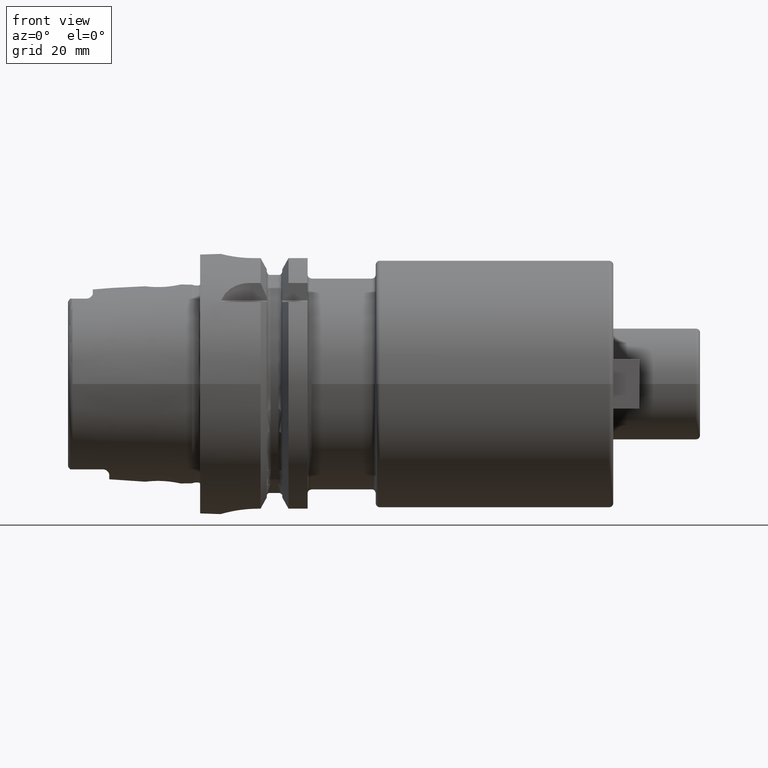
[diagram: clean part render]
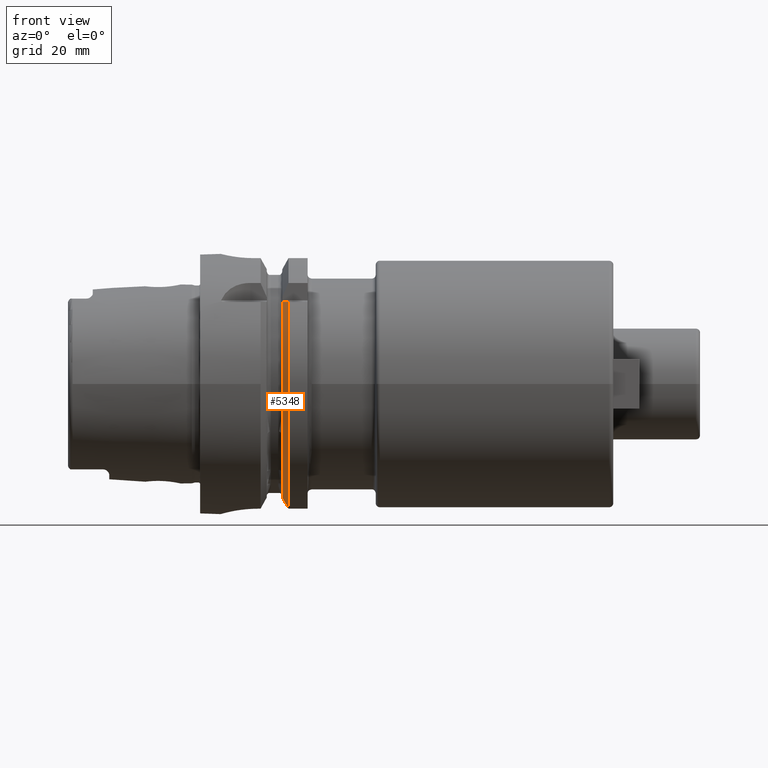
[diagram: same view with one face highlighted and labeled with its STEP entity id]
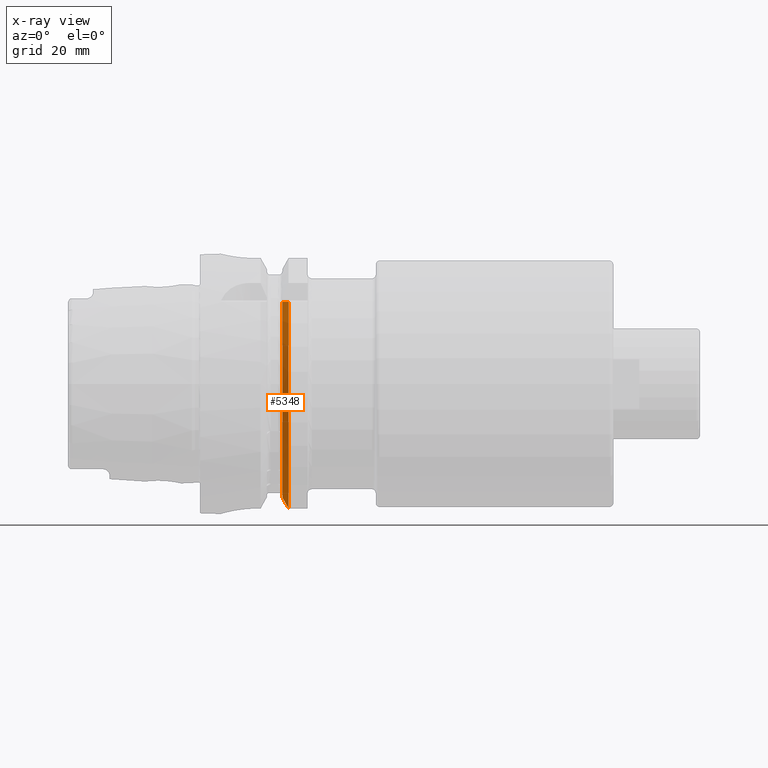
[diagram: x-ray of the same camera — body ghosted, the highlighted face saturated]
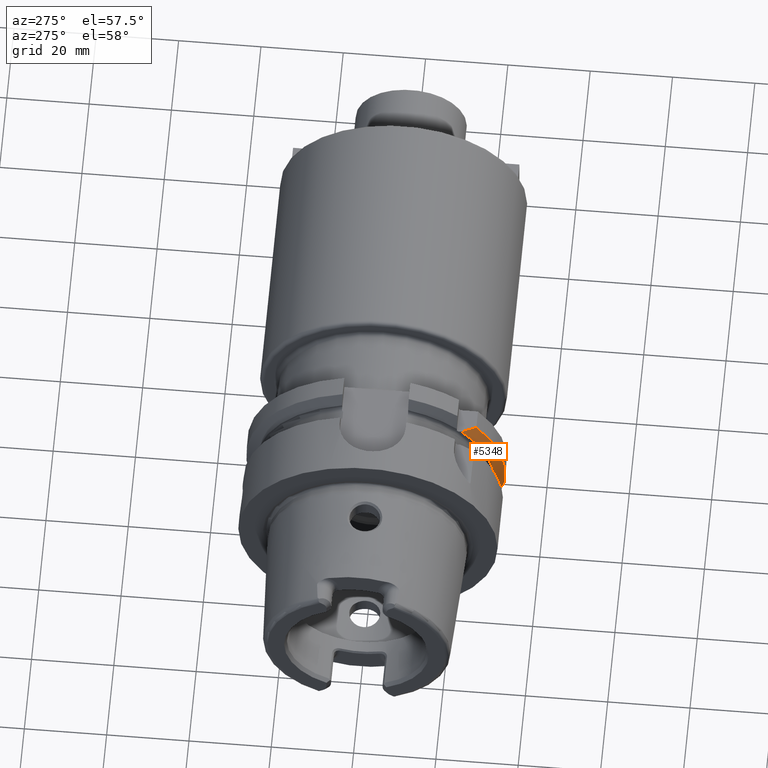
[diagram: same view with one face highlighted and labeled with its STEP entity id]
A machine part, front view. The second image highlights one B-rep face of the part: STEP entity #5348.
The next image is the same camera in x-ray: the body ghosted, the highlighted face saturated — about 0% of this face is hidden behind the body in this view.
A second angle (auxiliary view) of the same face is appended — the face is thin or edge-on in the first view.
In plain terms, the highlighted conical surface has half-angle 60 deg.
Its self-contained STEP definition (entity closure, byte-faithful):
#1781=CARTESIAN_POINT('',(1.9875E1,-2.100115501712E1,1.985E1));
#1782=CARTESIAN_POINT('',(2.002615778083E1,-2.136140971936E1,1.985E1));
#1783=CARTESIAN_POINT('',(2.033884699379E1,-2.209786160622E1,1.985E1));
#1784=CARTESIAN_POINT('',(2.083744118214E1,-2.324577082409E1,1.985E1));
#1785=CARTESIAN_POINT('',(2.119367380645E1,-2.404863363206E1,1.985E1));
#1786=CARTESIAN_POINT('',(2.137749907476E1,-2.445868966237E1,1.985E1));
#1788=CARTESIAN_POINT('',(2.137749907476E1,0.E0,0.E0));
#1789=DIRECTION('',(1.E0,0.E0,0.E0));
#1790=DIRECTION('',(0.E0,-7.764663384879E-1,6.301587301587E-1));
#1791=AXIS2_PLACEMENT_3D('',#1788,#1789,#1790);
#1793=CARTESIAN_POINT('',(1.9875E1,-9.0175E0,-2.745461174016E1));
#1794=CARTESIAN_POINT('',(2.003399901875E1,-9.0175E0,-2.774448053791E1));
#1795=CARTESIAN_POINT('',(2.035729051151E1,-9.0175E0,-2.833297398512E1));
#1796=CARTESIAN_POINT('',(2.085789481016E1,-9.0175E0,-2.924158789478E1));
#1797=CARTESIAN_POINT('',(2.120250873981E1,-9.0175E0,-2.986536377611E1));
#1798=CARTESIAN_POINT('',(2.137749907476E1,-9.0175E0,-3.018169467989E1));
#1800=CARTESIAN_POINT('',(1.9875E1,0.E0,0.E0));
#1801=DIRECTION('',(-1.E0,0.E0,0.E0));
#1802=DIRECTION('',(0.E0,-3.120501867909E-1,-9.500656192726E-1));
#1803=AXIS2_PLACEMENT_3D('',#1800,#1801,#1802);
#3236=CARTESIAN_POINT('',(1.9875E1,-9.0175E0,-2.745461174016E1));
#3238=VERTEX_POINT('',#3236);
#3241=VERTEX_POINT('',#1798);
#3248=CARTESIAN_POINT('',(2.137749907476E1,-2.445868966237E1,1.985E1));
#3250=VERTEX_POINT('',#3248);
#3264=CARTESIAN_POINT('',(1.9875E1,-2.100115501712E1,1.985E1));
#3266=VERTEX_POINT('',#3264);
#5334=CARTESIAN_POINT('',(2.062624953738E1,0.E0,0.E0));
#5335=DIRECTION('',(1.E0,0.E0,0.E0));
#5336=DIRECTION('',(0.E0,-1.E0,0.E0));
#5337=AXIS2_PLACEMENT_3D('',#5334,#5335,#5336);
#5338=CONICAL_SURFACE('',#5337,3.019879763210E1,6.E1);
#5340=ORIENTED_EDGE('',*,*,#5339,.T.);
#5341=ORIENTED_EDGE('',*,*,#5279,.T.);
#5343=ORIENTED_EDGE('',*,*,#5342,.F.);
#5345=ORIENTED_EDGE('',*,*,#5344,.T.);
#5346=EDGE_LOOP('',(#5340,#5341,#5343,#5345));
#5347=FACE_OUTER_BOUND('',#5346,.F.);
#5348=ADVANCED_FACE('',(#5347),#5338,.T.);
#1787=B_SPLINE_CURVE_WITH_KNOTS('',3,(#1781,#1782,#1783,#1784,#1785,#1786),
.UNSPECIFIED.,.F.,.F.,(4,1,1,4),(0.E0,3.333333333333E-1,6.666666666667E-1,1.E0),
.UNSPECIFIED.);
#1792=CIRCLE('',#1791,3.15E1);
#1799=B_SPLINE_CURVE_WITH_KNOTS('',3,(#1793,#1794,#1795,#1796,#1797,#1798),
.UNSPECIFIED.,.F.,.F.,(4,1,1,4),(0.E0,3.333333333333E-1,6.666666666667E-1,1.E0),
.UNSPECIFIED.);
#1804=CIRCLE('',#1803,2.889759526419E1);
#5279=EDGE_CURVE('',#3250,#3241,#1792,.T.);
#5339=EDGE_CURVE('',#3266,#3250,#1787,.T.);
#5342=EDGE_CURVE('',#3238,#3241,#1799,.T.);
#5344=EDGE_CURVE('',#3238,#3266,#1804,.T.);